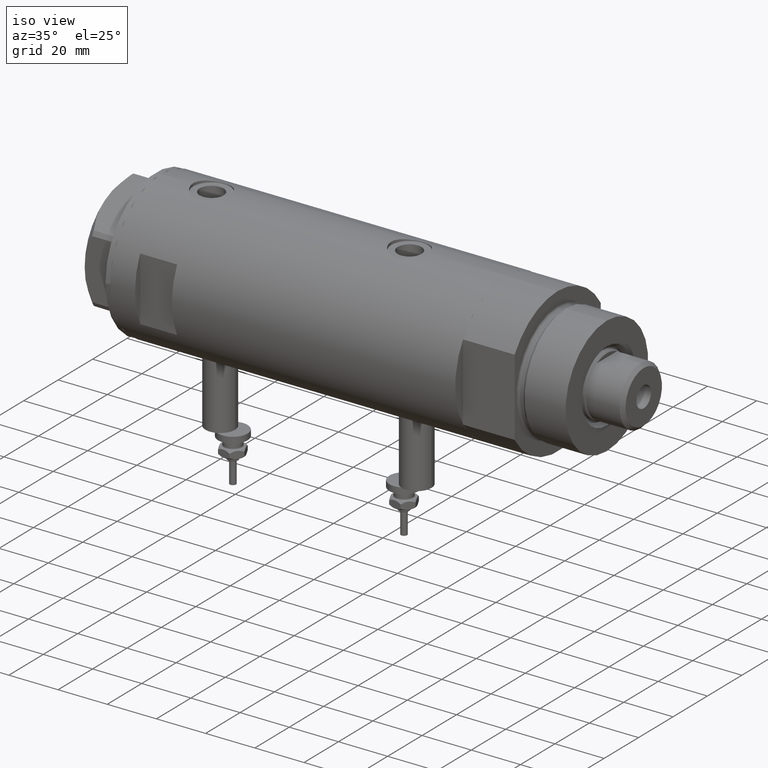
[diagram: clean part render]
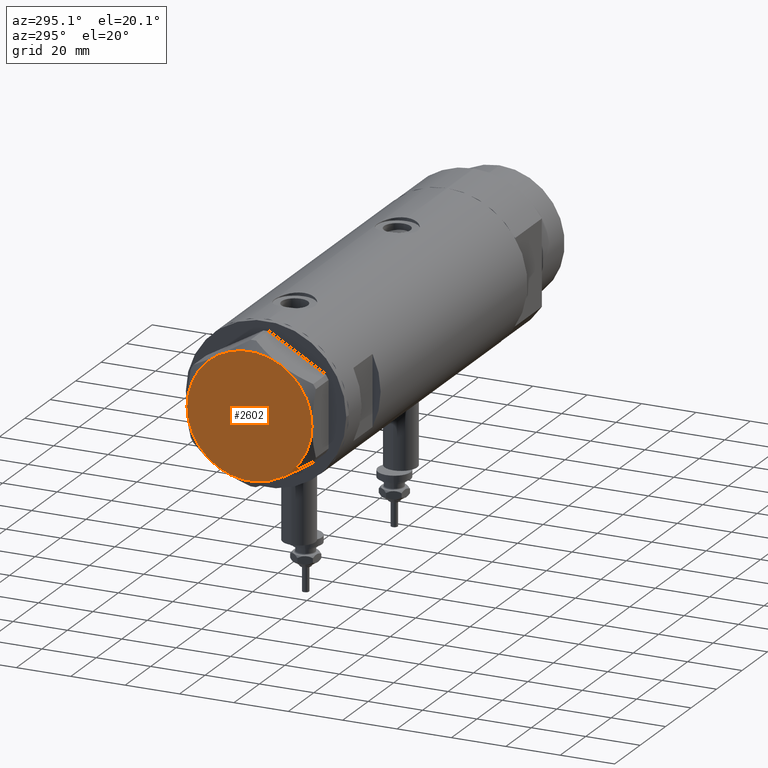
[diagram: tour spotlight — one face highlighted and labeled with its STEP entity id]
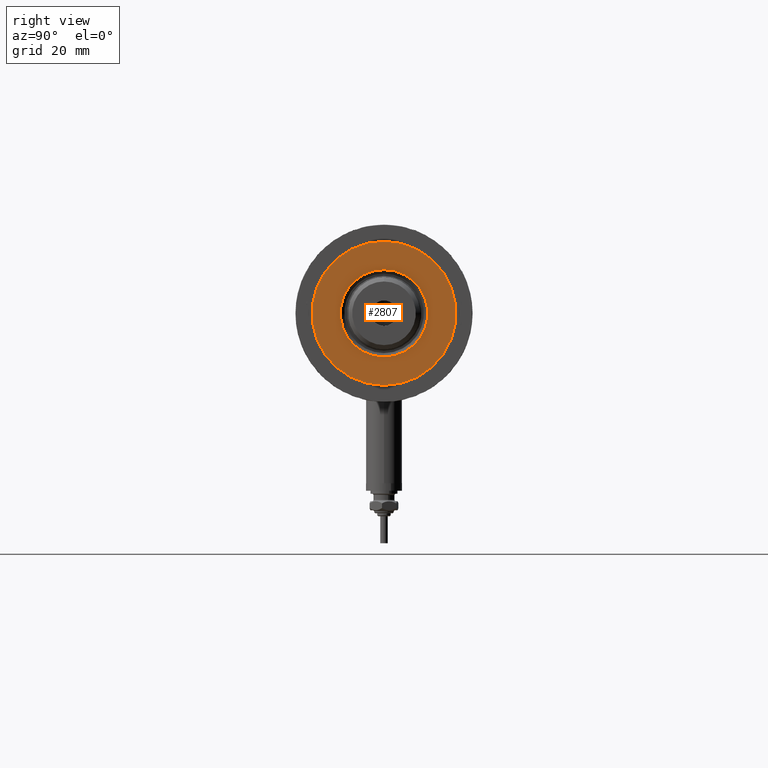
[diagram: tour spotlight — one face highlighted and labeled with its STEP entity id]
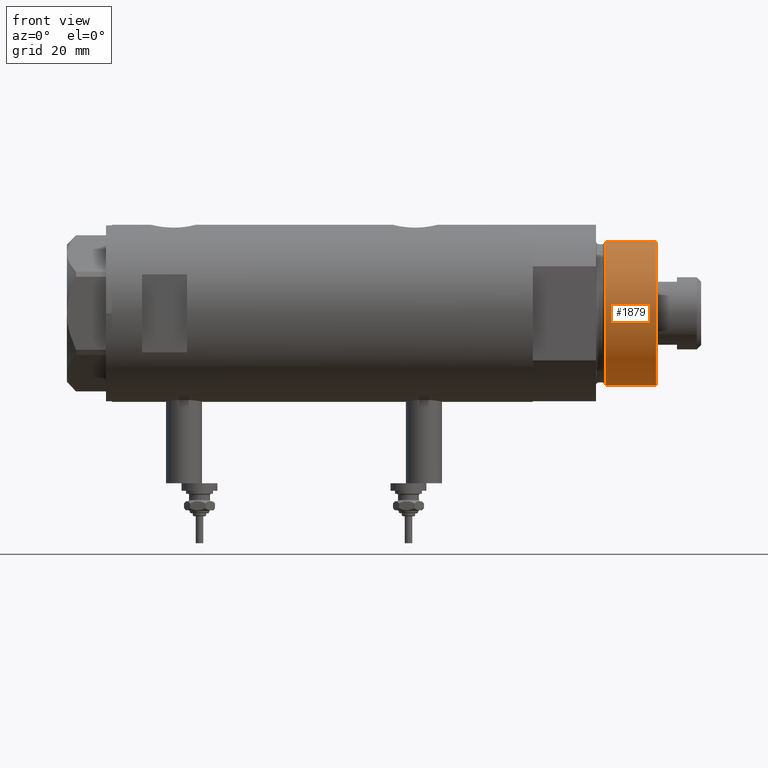
[diagram: tour spotlight — one face highlighted and labeled with its STEP entity id]
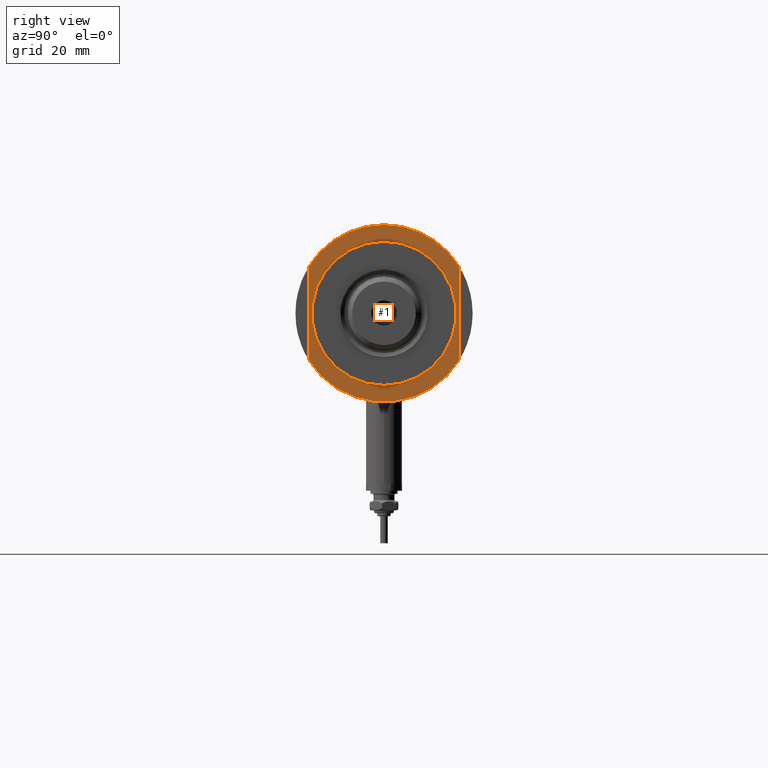
[diagram: tour spotlight — one face highlighted and labeled with its STEP entity id]
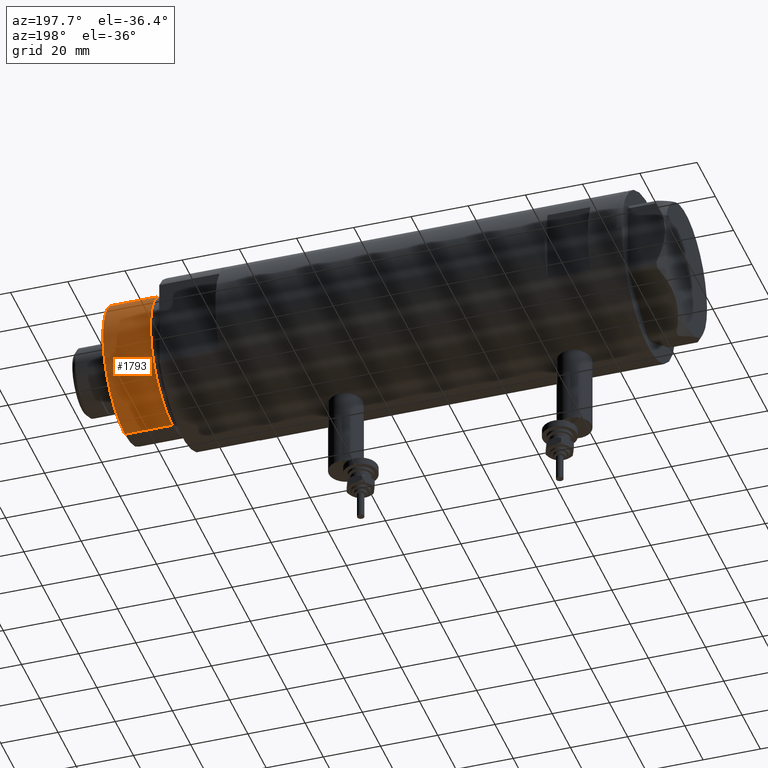
[diagram: tour spotlight — one face highlighted and labeled with its STEP entity id]
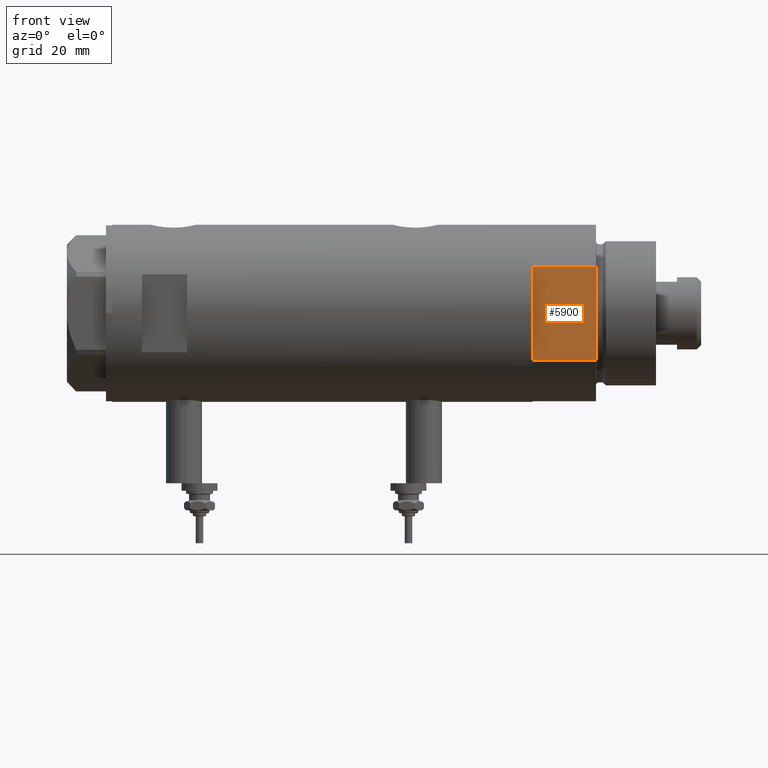
[diagram: tour spotlight — one face highlighted and labeled with its STEP entity id]
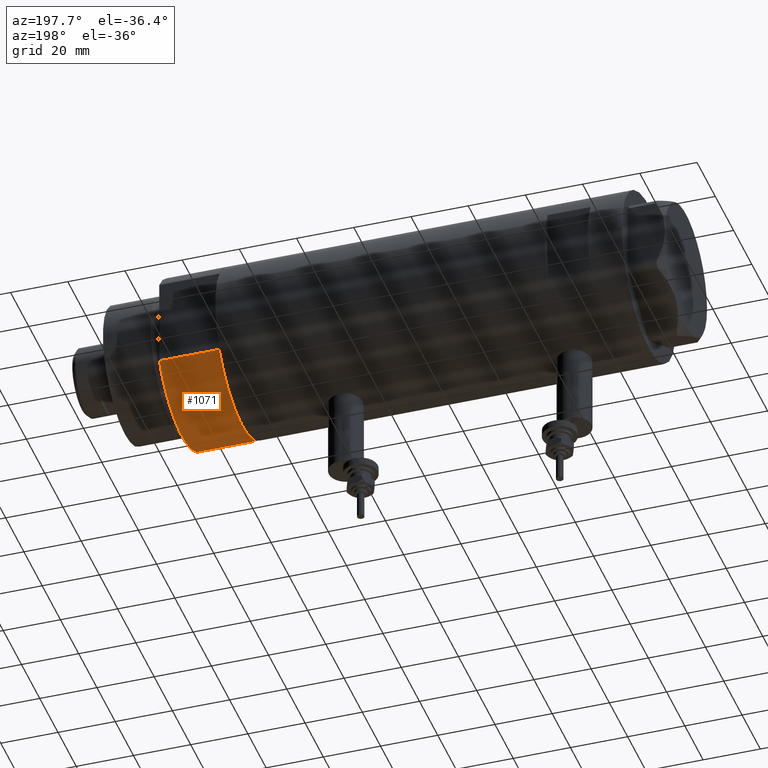
[diagram: tour spotlight — one face highlighted and labeled with its STEP entity id]
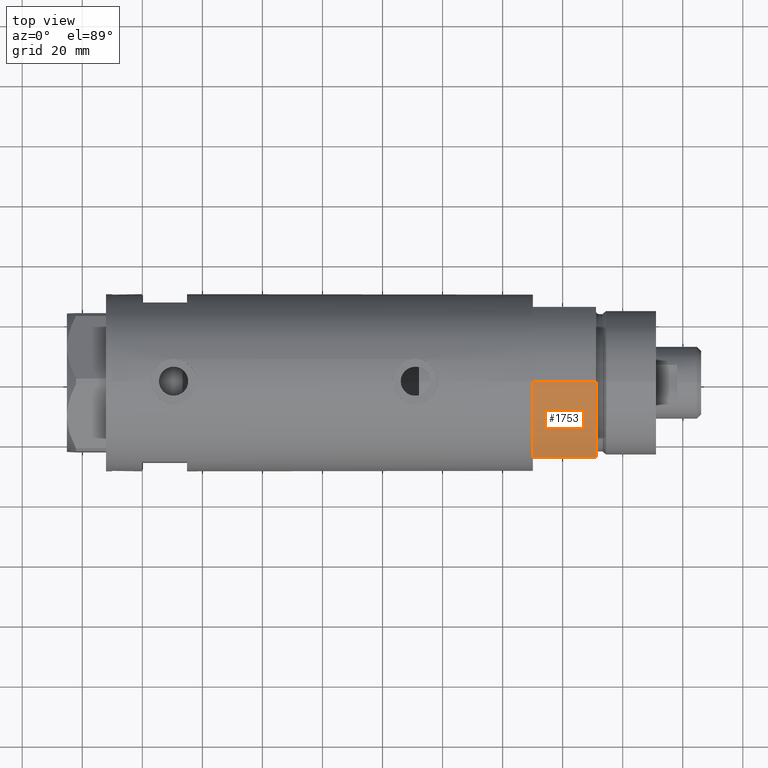
[diagram: tour spotlight — one face highlighted and labeled with its STEP entity id]
A machine part: a face-by-face anatomy tour. The part has 212 B-rep faces; the first image is the clean iso view, then the 8 largest visible faces are spotlighted one at a time (largest first), each with its STEP entity span.

Face 1 — auxiliary view, entity #2602. In plain terms, the highlighted planar face has unit normal (-1, -0, 0).
Definition (entity closure, byte-faithful):
#50 = AXIS2_PLACEMENT_3D ( 'NONE', #1291, #4920, #3073 ) ;
#512 = CARTESIAN_POINT ( 'NONE',  ( 0.000000000000000000, 0.000000000000000000, 13.00000000000000000 ) ) ;
#576 = DIRECTION ( 'NONE',  ( 0.000000000000000000, 0.000000000000000000, 1.000000000000000000 ) ) ;
#672 = CIRCLE ( 'NONE', #4387, 23.00000000000004619 ) ;
#921 = VERTEX_POINT ( 'NONE', #4899 ) ;
#951 = DIRECTION ( 'NONE',  ( 1.000000000000000000, 0.000000000000000000, 0.000000000000000000 ) ) ;
#1046 = CARTESIAN_POINT ( 'NONE',  ( -23.00000000000004619, -8.112498833180673323E-14, 13.00000000000000000 ) ) ;
#1055 = VERTEX_POINT ( 'NONE', #3760 ) ;
#1130 = VERTEX_POINT ( 'NONE', #1046 ) ;
#1141 = CIRCLE ( 'NONE', #50, 23.00000000000004619 ) ;
#1149 = DIRECTION ( 'NONE',  ( 1.000000000000000000, 0.000000000000000000, -0.000000000000000000 ) ) ;
#1291 = CARTESIAN_POINT ( 'NONE',  ( 0.000000000000000000, 0.000000000000000000, 13.00000000000000000 ) ) ;
#1386 = EDGE_CURVE ( 'NONE', #921, #1434, #2549, .T. ) ;
#1434 = VERTEX_POINT ( 'NONE', #2516 ) ;
#1435 = AXIS2_PLACEMENT_3D ( 'NONE', #5136, #4254, #3315 ) ;
#1481 = EDGE_CURVE ( 'NONE', #4657, #3550, #1141, .T. ) ;
#1489 = ORIENTED_EDGE ( 'NONE', *, *, #3864, .T. ) ;
#1561 = CARTESIAN_POINT ( 'NONE',  ( 0.000000000000000000, 0.000000000000000000, 13.00000000000000000 ) ) ;
#1802 = EDGE_CURVE ( 'NONE', #1130, #4657, #2354, .T. ) ;
#1807 = EDGE_LOOP ( 'NONE', ( #3068, #5874, #1489, #5669, #2885, #1838 ) ) ;
#1817 = CIRCLE ( 'NONE', #2190, 23.00000000000004619 ) ;
#1838 = ORIENTED_EDGE ( 'NONE', *, *, #1481, .T. ) ;
#1923 = CARTESIAN_POINT ( 'NONE',  ( 0.000000000000000000, 0.000000000000000000, 13.00000000000000000 ) ) ;
#2190 = AXIS2_PLACEMENT_3D ( 'NONE', #1923, #576, #3704 ) ;
#2231 = DIRECTION ( 'NONE',  ( 1.000000000000000000, 0.000000000000000000, 0.000000000000000000 ) ) ;
#2354 = CIRCLE ( 'NONE', #1435, 23.00000000000004619 ) ;
#2365 = CARTESIAN_POINT ( 'NONE',  ( 0.000000000000000000, 0.000000000000000000, 13.00000000000000000 ) ) ;
#2516 = CARTESIAN_POINT ( 'NONE',  ( 11.49999999999990408, 19.91858428704219364, 13.00000000000000000 ) ) ;
#2529 = DIRECTION ( 'NONE',  ( 0.000000000000000000, 0.000000000000000000, 1.000000000000000000 ) ) ;
#2549 = CIRCLE ( 'NONE', #3904, 23.00000000000004619 ) ;
#2562 = AXIS2_PLACEMENT_3D ( 'NONE', #5276, #2529, #1149 ) ;
#2602 = ADVANCED_FACE ( 'NONE', ( #5299 ), #2967, .T. ) ;
#2885 = ORIENTED_EDGE ( 'NONE', *, *, #1802, .T. ) ;
#2967 = PLANE ( 'NONE',  #2562 ) ;
#3068 = ORIENTED_EDGE ( 'NONE', *, *, #3558, .T. ) ;
#3073 = DIRECTION ( 'NONE',  ( 1.000000000000000000, 0.000000000000000000, 0.000000000000000000 ) ) ;
#3163 = DIRECTION ( 'NONE',  ( 0.000000000000000000, 0.000000000000000000, 1.000000000000000000 ) ) ;
#3223 = CARTESIAN_POINT ( 'NONE',  ( 11.50000000000018296, -19.91858428704203732, 13.00000000000000000 ) ) ;
#3315 = DIRECTION ( 'NONE',  ( 1.000000000000000000, 0.000000000000000000, 0.000000000000000000 ) ) ;
#3550 = VERTEX_POINT ( 'NONE', #3223 ) ;
#3558 = EDGE_CURVE ( 'NONE', #3550, #921, #5733, .T. ) ;
#3704 = DIRECTION ( 'NONE',  ( 1.000000000000000000, 0.000000000000000000, 0.000000000000000000 ) ) ;
#3760 = CARTESIAN_POINT ( 'NONE',  ( -11.50000000000004441, 19.91858428704211548, 13.00000000000000000 ) ) ;
#3864 = EDGE_CURVE ( 'NONE', #1434, #1055, #1817, .T. ) ;
#3904 = AXIS2_PLACEMENT_3D ( 'NONE', #1561, #4344, #5724 ) ;
#4020 = AXIS2_PLACEMENT_3D ( 'NONE', #512, #3163, #2231 ) ;
#4254 = DIRECTION ( 'NONE',  ( 0.000000000000000000, 0.000000000000000000, 1.000000000000000000 ) ) ;
#4344 = DIRECTION ( 'NONE',  ( 0.000000000000000000, 0.000000000000000000, 1.000000000000000000 ) ) ;
#4387 = AXIS2_PLACEMENT_3D ( 'NONE', #2365, #5020, #951 ) ;
#4448 = CARTESIAN_POINT ( 'NONE',  ( -11.49999999999990585, -19.91858428704219364, 13.00000000000000000 ) ) ;
#4657 = VERTEX_POINT ( 'NONE', #4448 ) ;
#4899 = CARTESIAN_POINT ( 'NONE',  ( 22.99999999999995026, 2.373657066004705010E-13, 13.00000000000000000 ) ) ;
#4920 = DIRECTION ( 'NONE',  ( 0.000000000000000000, 0.000000000000000000, 1.000000000000000000 ) ) ;
#5020 = DIRECTION ( 'NONE',  ( 0.000000000000000000, 0.000000000000000000, 1.000000000000000000 ) ) ;
#5022 = EDGE_CURVE ( 'NONE', #1055, #1130, #672, .T. ) ;
#5136 = CARTESIAN_POINT ( 'NONE',  ( 0.000000000000000000, 0.000000000000000000, 13.00000000000000000 ) ) ;
#5276 = CARTESIAN_POINT ( 'NONE',  ( 0.000000000000000000, 0.000000000000000000, 13.00000000000000000 ) ) ;
#5299 = FACE_OUTER_BOUND ( 'NONE', #1807, .T. ) ;
#5669 = ORIENTED_EDGE ( 'NONE', *, *, #5022, .T. ) ;
#5724 = DIRECTION ( 'NONE',  ( 1.000000000000000000, 0.000000000000000000, 0.000000000000000000 ) ) ;
#5733 = CIRCLE ( 'NONE', #4020, 23.00000000000004619 ) ;
#5874 = ORIENTED_EDGE ( 'NONE', *, *, #1386, .T. ) ;

Face 2 — right view, entity #2807. In plain terms, the highlighted planar face has unit normal (1, 0, -0).
Definition (entity closure, byte-faithful):
#293 = DIRECTION ( 'NONE',  ( 1.000000000000000000, 0.000000000000000000, -0.000000000000000000 ) ) ;
#315 = CARTESIAN_POINT ( 'NONE',  ( 0.000000000000000000, 0.000000000000000000, 41.00000000000000000 ) ) ;
#553 = CARTESIAN_POINT ( 'NONE',  ( 0.000000000000000000, 0.000000000000000000, 41.00000000000000000 ) ) ;
#645 = CARTESIAN_POINT ( 'NONE',  ( 0.000000000000000000, 0.000000000000000000, 41.00000000000000000 ) ) ;
#656 = CIRCLE ( 'NONE', #3353, 14.54999999999997939 ) ;
#736 = ORIENTED_EDGE ( 'NONE', *, *, #5848, .T. ) ;
#845 = PLANE ( 'NONE',  #1252 ) ;
#1075 = CIRCLE ( 'NONE', #5916, 14.54999999999997939 ) ;
#1252 = AXIS2_PLACEMENT_3D ( 'NONE', #3587, #2566, #293 ) ;
#1486 = CARTESIAN_POINT ( 'NONE',  ( 0.000000000000000000, 0.000000000000000000, 41.00000000000000000 ) ) ;
#1659 = DIRECTION ( 'NONE',  ( 1.000000000000000000, 0.000000000000000000, 0.000000000000000000 ) ) ;
#1790 = VERTEX_POINT ( 'NONE', #2449 ) ;
#2147 = EDGE_CURVE ( 'NONE', #4327, #1790, #656, .T. ) ;
#2188 = CIRCLE ( 'NONE', #2978, 24.00000000000000355 ) ;
#2323 = CARTESIAN_POINT ( 'NONE',  ( -14.54999999999997939, 1.781861092759396721E-15, 41.00000000000000000 ) ) ;
#2344 = DIRECTION ( 'NONE',  ( 0.000000000000000000, 0.000000000000000000, 1.000000000000000000 ) ) ;
#2449 = CARTESIAN_POINT ( 'NONE',  ( 14.54999999999997939, 0.000000000000000000, 41.00000000000000000 ) ) ;
#2503 = DIRECTION ( 'NONE',  ( 1.000000000000000000, 0.000000000000000000, 0.000000000000000000 ) ) ;
#2566 = DIRECTION ( 'NONE',  ( 0.000000000000000000, 0.000000000000000000, 1.000000000000000000 ) ) ;
#2605 = FACE_OUTER_BOUND ( 'NONE', #3240, .T. ) ;
#2733 = VERTEX_POINT ( 'NONE', #5549 ) ;
#2807 = ADVANCED_FACE ( 'NONE', ( #5854, #2605 ), #845, .T. ) ;
#2823 = DIRECTION ( 'NONE',  ( 0.000000000000000000, 0.000000000000000000, 1.000000000000000000 ) ) ;
#2962 = EDGE_CURVE ( 'NONE', #2733, #5695, #4185, .T. ) ;
#2978 = AXIS2_PLACEMENT_3D ( 'NONE', #1486, #2344, #4148 ) ;
#3011 = CARTESIAN_POINT ( 'NONE',  ( -24.00000000000000355, 0.000000000000000000, 41.00000000000000000 ) ) ;
#3240 = EDGE_LOOP ( 'NONE', ( #736, #5186 ) ) ;
#3353 = AXIS2_PLACEMENT_3D ( 'NONE', #315, #4386, #3957 ) ;
#3582 = ORIENTED_EDGE ( 'NONE', *, *, #2147, .T. ) ;
#3587 = CARTESIAN_POINT ( 'NONE',  ( 0.000000000000000000, 0.000000000000000000, 41.00000000000000000 ) ) ;
#3957 = DIRECTION ( 'NONE',  ( 1.000000000000000000, 0.000000000000000000, 0.000000000000000000 ) ) ;
#4148 = DIRECTION ( 'NONE',  ( 1.000000000000000000, 0.000000000000000000, 0.000000000000000000 ) ) ;
#4185 = CIRCLE ( 'NONE', #5032, 24.00000000000000355 ) ;
#4270 = DIRECTION ( 'NONE',  ( -0.000000000000000000, -0.000000000000000000, -1.000000000000000000 ) ) ;
#4327 = VERTEX_POINT ( 'NONE', #2323 ) ;
#4386 = DIRECTION ( 'NONE',  ( -0.000000000000000000, -0.000000000000000000, -1.000000000000000000 ) ) ;
#4805 = EDGE_CURVE ( 'NONE', #1790, #4327, #1075, .T. ) ;
#5032 = AXIS2_PLACEMENT_3D ( 'NONE', #553, #2823, #2503 ) ;
#5186 = ORIENTED_EDGE ( 'NONE', *, *, #2962, .T. ) ;
#5469 = ORIENTED_EDGE ( 'NONE', *, *, #4805, .T. ) ;
#5490 = EDGE_LOOP ( 'NONE', ( #5469, #3582 ) ) ;
#5549 = CARTESIAN_POINT ( 'NONE',  ( 24.00000000000000355, 2.939152317953648289E-15, 41.00000000000000000 ) ) ;
#5695 = VERTEX_POINT ( 'NONE', #3011 ) ;
#5848 = EDGE_CURVE ( 'NONE', #5695, #2733, #2188, .T. ) ;
#5854 = FACE_BOUND ( 'NONE', #5490, .T. ) ;
#5916 = AXIS2_PLACEMENT_3D ( 'NONE', #645, #4270, #1659 ) ;

Face 3 — front view, entity #1879. In plain terms, the highlighted cylindrical surface (partial cylindrical patch) has radius 24 mm, axis along (-1, -0, 0).
Definition (entity closure, byte-faithful):
#81 = CARTESIAN_POINT ( 'NONE',  ( -24.00000000000000355, 0.000000000000000000, 41.00000000000000000 ) ) ;
#181 = VECTOR ( 'NONE', #5039, 1000.000000000000000 ) ;
#243 = VERTEX_POINT ( 'NONE', #4512 ) ;
#543 = AXIS2_PLACEMENT_3D ( 'NONE', #2662, #4948, #880 ) ;
#544 = EDGE_CURVE ( 'NONE', #243, #1651, #1234, .T. ) ;
#655 = EDGE_CURVE ( 'NONE', #5695, #243, #2331, .T. ) ;
#847 = CYLINDRICAL_SURFACE ( 'NONE', #543, 24.00000000000000355 ) ;
#880 = DIRECTION ( 'NONE',  ( -1.000000000000000000, 0.000000000000000000, 0.000000000000000000 ) ) ;
#957 = ORIENTED_EDGE ( 'NONE', *, *, #655, .T. ) ;
#1197 = ORIENTED_EDGE ( 'NONE', *, *, #544, .T. ) ;
#1234 = CIRCLE ( 'NONE', #1523, 24.00000000000000355 ) ;
#1323 = LINE ( 'NONE', #4131, #181 ) ;
#1486 = CARTESIAN_POINT ( 'NONE',  ( 0.000000000000000000, 0.000000000000000000, 41.00000000000000000 ) ) ;
#1523 = AXIS2_PLACEMENT_3D ( 'NONE', #5477, #3320, #1839 ) ;
#1651 = VERTEX_POINT ( 'NONE', #2680 ) ;
#1839 = DIRECTION ( 'NONE',  ( 1.000000000000000000, 0.000000000000000000, 0.000000000000000000 ) ) ;
#1879 = ADVANCED_FACE ( 'NONE', ( #4559 ), #847, .T. ) ;
#2188 = CIRCLE ( 'NONE', #2978, 24.00000000000000355 ) ;
#2331 = LINE ( 'NONE', #81, #2345 ) ;
#2344 = DIRECTION ( 'NONE',  ( 0.000000000000000000, 0.000000000000000000, 1.000000000000000000 ) ) ;
#2345 = VECTOR ( 'NONE', #4224, 1000.000000000000000 ) ;
#2662 = CARTESIAN_POINT ( 'NONE',  ( 0.000000000000000000, 0.000000000000000000, 41.00000000000000000 ) ) ;
#2680 = CARTESIAN_POINT ( 'NONE',  ( 24.00000000000000355, 2.939152317953648289E-15, 24.37384048104054557 ) ) ;
#2733 = VERTEX_POINT ( 'NONE', #5549 ) ;
#2978 = AXIS2_PLACEMENT_3D ( 'NONE', #1486, #2344, #4148 ) ;
#3011 = CARTESIAN_POINT ( 'NONE',  ( -24.00000000000000355, 0.000000000000000000, 41.00000000000000000 ) ) ;
#3320 = DIRECTION ( 'NONE',  ( -0.000000000000000000, -0.000000000000000000, 1.000000000000000000 ) ) ;
#3987 = EDGE_CURVE ( 'NONE', #2733, #1651, #1323, .T. ) ;
#4063 = EDGE_LOOP ( 'NONE', ( #5497, #5235, #957, #1197 ) ) ;
#4131 = CARTESIAN_POINT ( 'NONE',  ( 24.00000000000000355, 2.939152317953648289E-15, 41.00000000000000000 ) ) ;
#4148 = DIRECTION ( 'NONE',  ( 1.000000000000000000, 0.000000000000000000, 0.000000000000000000 ) ) ;
#4224 = DIRECTION ( 'NONE',  ( -0.000000000000000000, -0.000000000000000000, -1.000000000000000000 ) ) ;
#4512 = CARTESIAN_POINT ( 'NONE',  ( -24.00000000000000355, 0.000000000000000000, 24.37384048104054557 ) ) ;
#4559 = FACE_OUTER_BOUND ( 'NONE', #4063, .T. ) ;
#4948 = DIRECTION ( 'NONE',  ( -0.000000000000000000, -0.000000000000000000, -1.000000000000000000 ) ) ;
#5039 = DIRECTION ( 'NONE',  ( -0.000000000000000000, -0.000000000000000000, -1.000000000000000000 ) ) ;
#5235 = ORIENTED_EDGE ( 'NONE', *, *, #5848, .F. ) ;
#5477 = CARTESIAN_POINT ( 'NONE',  ( 0.000000000000000000, 0.000000000000000000, 24.37384048104054557 ) ) ;
#5497 = ORIENTED_EDGE ( 'NONE', *, *, #3987, .F. ) ;
#5549 = CARTESIAN_POINT ( 'NONE',  ( 24.00000000000000355, 2.939152317953648289E-15, 41.00000000000000000 ) ) ;
#5695 = VERTEX_POINT ( 'NONE', #3011 ) ;
#5848 = EDGE_CURVE ( 'NONE', #5695, #2733, #2188, .T. ) ;

Face 4 — right view, entity #1. In plain terms, the highlighted planar face has unit normal (1, 0, -0).
Definition (entity closure, byte-faithful):
#1 = ADVANCED_FACE ( 'NONE', ( #3008, #746 ), #1310, .T. ) ;
#46 = VERTEX_POINT ( 'NONE', #3402 ) ;
#246 = CIRCLE ( 'NONE', #1031, 24.00000000000000000 ) ;
#279 = CARTESIAN_POINT ( 'NONE',  ( 0.000000000000000000, 0.000000000000000000, 21.00000000000000000 ) ) ;
#321 = VERTEX_POINT ( 'NONE', #2563 ) ;
#621 = ORIENTED_EDGE ( 'NONE', *, *, #4200, .T. ) ;
#713 = DIRECTION ( 'NONE',  ( 1.000000000000000000, 0.000000000000000000, 0.000000000000000000 ) ) ;
#746 = FACE_OUTER_BOUND ( 'NONE', #3217, .T. ) ;
#911 = CARTESIAN_POINT ( 'NONE',  ( -15.66045976336583401, 25.00000000000000000, 21.00000000000000000 ) ) ;
#959 = CIRCLE ( 'NONE', #5346, 29.50000000000000355 ) ;
#964 = EDGE_CURVE ( 'NONE', #46, #2304, #246, .T. ) ;
#1031 = AXIS2_PLACEMENT_3D ( 'NONE', #5914, #5471, #1430 ) ;
#1058 = EDGE_CURVE ( 'NONE', #321, #1213, #5095, .T. ) ;
#1067 = VERTEX_POINT ( 'NONE', #2783 ) ;
#1161 = CIRCLE ( 'NONE', #3468, 29.50000000000000355 ) ;
#1213 = VERTEX_POINT ( 'NONE', #3237 ) ;
#1222 = ORIENTED_EDGE ( 'NONE', *, *, #4575, .T. ) ;
#1263 = CARTESIAN_POINT ( 'NONE',  ( -15.66045976336583401, -25.00000000000000000, 21.00000000000000000 ) ) ;
#1272 = EDGE_CURVE ( 'NONE', #4910, #1067, #1728, .T. ) ;
#1305 = CARTESIAN_POINT ( 'NONE',  ( 0.000000000000000000, 0.000000000000000000, 21.00000000000000000 ) ) ;
#1310 = PLANE ( 'NONE',  #3388 ) ;
#1430 = DIRECTION ( 'NONE',  ( 1.000000000000000000, 0.000000000000000000, 0.000000000000000000 ) ) ;
#1613 = ORIENTED_EDGE ( 'NONE', *, *, #964, .T. ) ;
#1644 = AXIS2_PLACEMENT_3D ( 'NONE', #1305, #3606, #4443 ) ;
#1728 = LINE ( 'NONE', #1263, #3713 ) ;
#2194 = DIRECTION ( 'NONE',  ( 0.000000000000000000, 0.000000000000000000, 1.000000000000000000 ) ) ;
#2304 = VERTEX_POINT ( 'NONE', #3020 ) ;
#2563 = CARTESIAN_POINT ( 'NONE',  ( -15.66045976336583045, 24.99999999999999645, 21.00000000000000355 ) ) ;
#2746 = DIRECTION ( 'NONE',  ( 1.000000000000000000, 0.000000000000000000, 0.000000000000000000 ) ) ;
#2783 = CARTESIAN_POINT ( 'NONE',  ( -15.66045976336583045, -24.99999999999999645, 20.99999999999999645 ) ) ;
#2860 = ORIENTED_EDGE ( 'NONE', *, *, #1272, .F. ) ;
#2863 = CARTESIAN_POINT ( 'NONE',  ( 0.000000000000000000, 0.000000000000000000, 21.00000000000000000 ) ) ;
#2922 = DIRECTION ( 'NONE',  ( -0.000000000000000000, -0.000000000000000000, -1.000000000000000000 ) ) ;
#2930 = DIRECTION ( 'NONE',  ( 1.000000000000000000, 0.000000000000000000, 0.000000000000000000 ) ) ;
#3008 = FACE_BOUND ( 'NONE', #4903, .T. ) ;
#3020 = CARTESIAN_POINT ( 'NONE',  ( 24.00000000000000000, 0.000000000000000000, 21.00000000000000000 ) ) ;
#3031 = DIRECTION ( 'NONE',  ( 0.000000000000000000, 0.000000000000000000, 1.000000000000000000 ) ) ;
#3100 = EDGE_CURVE ( 'NONE', #4910, #1213, #1161, .T. ) ;
#3106 = CARTESIAN_POINT ( 'NONE',  ( -29.50000000000000355, 0.000000000000000000, 21.00000000000000000 ) ) ;
#3217 = EDGE_LOOP ( 'NONE', ( #2860, #4985, #5125, #1222, #5314 ) ) ;
#3236 = DIRECTION ( 'NONE',  ( 1.000000000000000000, 0.000000000000000000, 0.000000000000000000 ) ) ;
#3237 = CARTESIAN_POINT ( 'NONE',  ( 15.66045976336583045, 24.99999999999999645, 20.99999999999999645 ) ) ;
#3371 = CIRCLE ( 'NONE', #3844, 24.00000000000000000 ) ;
#3388 = AXIS2_PLACEMENT_3D ( 'NONE', #4798, #3031, #5340 ) ;
#3402 = CARTESIAN_POINT ( 'NONE',  ( -24.00000000000000000, 2.939152317953647894E-15, 21.00000000000000000 ) ) ;
#3468 = AXIS2_PLACEMENT_3D ( 'NONE', #2863, #4672, #2930 ) ;
#3606 = DIRECTION ( 'NONE',  ( 0.000000000000000000, 0.000000000000000000, 1.000000000000000000 ) ) ;
#3713 = VECTOR ( 'NONE', #4924, 1000.000000000000000 ) ;
#3844 = AXIS2_PLACEMENT_3D ( 'NONE', #5642, #2922, #713 ) ;
#4096 = CIRCLE ( 'NONE', #1644, 29.50000000000000355 ) ;
#4172 = VECTOR ( 'NONE', #2746, 1000.000000000000000 ) ;
#4200 = EDGE_CURVE ( 'NONE', #2304, #46, #3371, .T. ) ;
#4443 = DIRECTION ( 'NONE',  ( 1.000000000000000000, 0.000000000000000000, 0.000000000000000000 ) ) ;
#4575 = EDGE_CURVE ( 'NONE', #321, #4674, #959, .T. ) ;
#4672 = DIRECTION ( 'NONE',  ( 0.000000000000000000, 0.000000000000000000, 1.000000000000000000 ) ) ;
#4674 = VERTEX_POINT ( 'NONE', #3106 ) ;
#4798 = CARTESIAN_POINT ( 'NONE',  ( 0.000000000000000000, 0.000000000000000000, 21.00000000000000000 ) ) ;
#4903 = EDGE_LOOP ( 'NONE', ( #621, #1613 ) ) ;
#4910 = VERTEX_POINT ( 'NONE', #4933 ) ;
#4924 = DIRECTION ( 'NONE',  ( -1.000000000000000000, -0.000000000000000000, -0.000000000000000000 ) ) ;
#4933 = CARTESIAN_POINT ( 'NONE',  ( 15.66045976336583045, -25.00000000000000000, 21.00000000000000355 ) ) ;
#4956 = EDGE_CURVE ( 'NONE', #4674, #1067, #4096, .T. ) ;
#4985 = ORIENTED_EDGE ( 'NONE', *, *, #3100, .T. ) ;
#5095 = LINE ( 'NONE', #911, #4172 ) ;
#5125 = ORIENTED_EDGE ( 'NONE', *, *, #1058, .F. ) ;
#5314 = ORIENTED_EDGE ( 'NONE', *, *, #4956, .T. ) ;
#5340 = DIRECTION ( 'NONE',  ( 1.000000000000000000, 0.000000000000000000, -0.000000000000000000 ) ) ;
#5346 = AXIS2_PLACEMENT_3D ( 'NONE', #279, #2194, #3236 ) ;
#5471 = DIRECTION ( 'NONE',  ( -0.000000000000000000, -0.000000000000000000, -1.000000000000000000 ) ) ;
#5642 = CARTESIAN_POINT ( 'NONE',  ( 0.000000000000000000, 0.000000000000000000, 21.00000000000000000 ) ) ;
#5914 = CARTESIAN_POINT ( 'NONE',  ( 0.000000000000000000, 0.000000000000000000, 21.00000000000000000 ) ) ;

Face 5 — auxiliary view, entity #1793. In plain terms, the highlighted cylindrical surface (partial cylindrical patch) has radius 24 mm, axis along (-1, -0, 0).
Definition (entity closure, byte-faithful):
#81 = CARTESIAN_POINT ( 'NONE',  ( -24.00000000000000355, 0.000000000000000000, 41.00000000000000000 ) ) ;
#181 = VECTOR ( 'NONE', #5039, 1000.000000000000000 ) ;
#243 = VERTEX_POINT ( 'NONE', #4512 ) ;
#256 = AXIS2_PLACEMENT_3D ( 'NONE', #3818, #1521, #1495 ) ;
#503 = CARTESIAN_POINT ( 'NONE',  ( 0.000000000000000000, 0.000000000000000000, 24.37384048104054557 ) ) ;
#553 = CARTESIAN_POINT ( 'NONE',  ( 0.000000000000000000, 0.000000000000000000, 41.00000000000000000 ) ) ;
#655 = EDGE_CURVE ( 'NONE', #5695, #243, #2331, .T. ) ;
#780 = ORIENTED_EDGE ( 'NONE', *, *, #2962, .F. ) ;
#1030 = CYLINDRICAL_SURFACE ( 'NONE', #256, 24.00000000000000355 ) ;
#1323 = LINE ( 'NONE', #4131, #181 ) ;
#1403 = EDGE_LOOP ( 'NONE', ( #780, #3418, #5002, #3754 ) ) ;
#1495 = DIRECTION ( 'NONE',  ( -1.000000000000000000, 0.000000000000000000, 0.000000000000000000 ) ) ;
#1521 = DIRECTION ( 'NONE',  ( -0.000000000000000000, -0.000000000000000000, -1.000000000000000000 ) ) ;
#1651 = VERTEX_POINT ( 'NONE', #2680 ) ;
#1793 = ADVANCED_FACE ( 'NONE', ( #4108 ), #1030, .T. ) ;
#1905 = DIRECTION ( 'NONE',  ( -0.000000000000000000, -0.000000000000000000, 1.000000000000000000 ) ) ;
#2315 = DIRECTION ( 'NONE',  ( 1.000000000000000000, 0.000000000000000000, 0.000000000000000000 ) ) ;
#2331 = LINE ( 'NONE', #81, #2345 ) ;
#2345 = VECTOR ( 'NONE', #4224, 1000.000000000000000 ) ;
#2503 = DIRECTION ( 'NONE',  ( 1.000000000000000000, 0.000000000000000000, 0.000000000000000000 ) ) ;
#2547 = EDGE_CURVE ( 'NONE', #1651, #243, #4754, .T. ) ;
#2680 = CARTESIAN_POINT ( 'NONE',  ( 24.00000000000000355, 2.939152317953648289E-15, 24.37384048104054557 ) ) ;
#2733 = VERTEX_POINT ( 'NONE', #5549 ) ;
#2823 = DIRECTION ( 'NONE',  ( 0.000000000000000000, 0.000000000000000000, 1.000000000000000000 ) ) ;
#2962 = EDGE_CURVE ( 'NONE', #2733, #5695, #4185, .T. ) ;
#3011 = CARTESIAN_POINT ( 'NONE',  ( -24.00000000000000355, 0.000000000000000000, 41.00000000000000000 ) ) ;
#3418 = ORIENTED_EDGE ( 'NONE', *, *, #3987, .T. ) ;
#3754 = ORIENTED_EDGE ( 'NONE', *, *, #655, .F. ) ;
#3818 = CARTESIAN_POINT ( 'NONE',  ( 0.000000000000000000, 0.000000000000000000, 41.00000000000000000 ) ) ;
#3987 = EDGE_CURVE ( 'NONE', #2733, #1651, #1323, .T. ) ;
#4108 = FACE_OUTER_BOUND ( 'NONE', #1403, .T. ) ;
#4131 = CARTESIAN_POINT ( 'NONE',  ( 24.00000000000000355, 2.939152317953648289E-15, 41.00000000000000000 ) ) ;
#4185 = CIRCLE ( 'NONE', #5032, 24.00000000000000355 ) ;
#4224 = DIRECTION ( 'NONE',  ( -0.000000000000000000, -0.000000000000000000, -1.000000000000000000 ) ) ;
#4512 = CARTESIAN_POINT ( 'NONE',  ( -24.00000000000000355, 0.000000000000000000, 24.37384048104054557 ) ) ;
#4754 = CIRCLE ( 'NONE', #5134, 24.00000000000000355 ) ;
#5002 = ORIENTED_EDGE ( 'NONE', *, *, #2547, .T. ) ;
#5032 = AXIS2_PLACEMENT_3D ( 'NONE', #553, #2823, #2503 ) ;
#5039 = DIRECTION ( 'NONE',  ( -0.000000000000000000, -0.000000000000000000, -1.000000000000000000 ) ) ;
#5134 = AXIS2_PLACEMENT_3D ( 'NONE', #503, #1905, #2315 ) ;
#5549 = CARTESIAN_POINT ( 'NONE',  ( 24.00000000000000355, 2.939152317953648289E-15, 41.00000000000000000 ) ) ;
#5695 = VERTEX_POINT ( 'NONE', #3011 ) ;

Face 6 — front view, entity #5900. In plain terms, the highlighted planar face has unit normal (-0, 1, 0).
Definition (entity closure, byte-faithful):
#15 = ORIENTED_EDGE ( 'NONE', *, *, #4648, .T. ) ;
#319 = CARTESIAN_POINT ( 'NONE',  ( -15.66045976336583401, -25.00000000000000000, 0.000000000000000000 ) ) ;
#335 = VERTEX_POINT ( 'NONE', #2534 ) ;
#433 = VERTEX_POINT ( 'NONE', #3425 ) ;
#437 = LINE ( 'NONE', #3061, #4577 ) ;
#483 = CARTESIAN_POINT ( 'NONE',  ( -15.66045976336583401, -25.00000000000000000, 0.000000000000000000 ) ) ;
#628 = DIRECTION ( 'NONE',  ( -1.000000000000000000, -0.000000000000000000, -0.000000000000000000 ) ) ;
#989 = EDGE_CURVE ( 'NONE', #335, #5699, #3674, .T. ) ;
#1000 = FACE_OUTER_BOUND ( 'NONE', #3211, .T. ) ;
#1067 = VERTEX_POINT ( 'NONE', #2783 ) ;
#1111 = ORIENTED_EDGE ( 'NONE', *, *, #5554, .F. ) ;
#1263 = CARTESIAN_POINT ( 'NONE',  ( -15.66045976336583401, -25.00000000000000000, 21.00000000000000000 ) ) ;
#1272 = EDGE_CURVE ( 'NONE', #4910, #1067, #1728, .T. ) ;
#1286 = DIRECTION ( 'NONE',  ( -1.000000000000000000, -0.000000000000000000, -0.000000000000000000 ) ) ;
#1728 = LINE ( 'NONE', #1263, #3713 ) ;
#1798 = LINE ( 'NONE', #5579, #5911 ) ;
#2003 = VECTOR ( 'NONE', #628, 1000.000000000000000 ) ;
#2415 = PLANE ( 'NONE',  #2676 ) ;
#2422 = LINE ( 'NONE', #4711, #2003 ) ;
#2532 = ORIENTED_EDGE ( 'NONE', *, *, #989, .F. ) ;
#2534 = CARTESIAN_POINT ( 'NONE',  ( 7.141428428542853091, -25.00000000000000000, 0.000000000000000000 ) ) ;
#2545 = VECTOR ( 'NONE', #3646, 1000.000000000000000 ) ;
#2600 = DIRECTION ( 'NONE',  ( -0.000000000000000000, -0.000000000000000000, 1.000000000000000000 ) ) ;
#2676 = AXIS2_PLACEMENT_3D ( 'NONE', #3752, #5556, #4704 ) ;
#2783 = CARTESIAN_POINT ( 'NONE',  ( -15.66045976336583045, -24.99999999999999645, 20.99999999999999645 ) ) ;
#3061 = CARTESIAN_POINT ( 'NONE',  ( 15.66045976336583401, -25.00000000000000000, 0.000000000000000000 ) ) ;
#3211 = EDGE_LOOP ( 'NONE', ( #4601, #5268, #1111, #2532, #5062, #15 ) ) ;
#3425 = CARTESIAN_POINT ( 'NONE',  ( -15.66045976336582690, -25.00000000000000000, 0.000000000000000000 ) ) ;
#3646 = DIRECTION ( 'NONE',  ( -1.000000000000000000, -0.000000000000000000, -0.000000000000000000 ) ) ;
#3674 = LINE ( 'NONE', #483, #2545 ) ;
#3713 = VECTOR ( 'NONE', #4924, 1000.000000000000000 ) ;
#3752 = CARTESIAN_POINT ( 'NONE',  ( -15.66045976336583401, -25.00000000000000000, 0.000000000000000000 ) ) ;
#4248 = VERTEX_POINT ( 'NONE', #4723 ) ;
#4424 = LINE ( 'NONE', #319, #5820 ) ;
#4577 = VECTOR ( 'NONE', #2600, 1000.000000000000000 ) ;
#4601 = ORIENTED_EDGE ( 'NONE', *, *, #1272, .T. ) ;
#4648 = EDGE_CURVE ( 'NONE', #4248, #4910, #437, .T. ) ;
#4656 = EDGE_CURVE ( 'NONE', #4248, #335, #4424, .T. ) ;
#4704 = DIRECTION ( 'NONE',  ( 0.000000000000000000, -0.000000000000000000, 1.000000000000000000 ) ) ;
#4711 = CARTESIAN_POINT ( 'NONE',  ( -15.66045976336583401, -25.00000000000000000, 0.000000000000000000 ) ) ;
#4723 = CARTESIAN_POINT ( 'NONE',  ( 15.66045976336583401, -25.00000000000000000, 0.000000000000000000 ) ) ;
#4910 = VERTEX_POINT ( 'NONE', #4933 ) ;
#4924 = DIRECTION ( 'NONE',  ( -1.000000000000000000, -0.000000000000000000, -0.000000000000000000 ) ) ;
#4933 = CARTESIAN_POINT ( 'NONE',  ( 15.66045976336583045, -25.00000000000000000, 21.00000000000000355 ) ) ;
#5062 = ORIENTED_EDGE ( 'NONE', *, *, #4656, .F. ) ;
#5122 = DIRECTION ( 'NONE',  ( -0.000000000000000000, -0.000000000000000000, 1.000000000000000000 ) ) ;
#5268 = ORIENTED_EDGE ( 'NONE', *, *, #5843, .F. ) ;
#5281 = CARTESIAN_POINT ( 'NONE',  ( -7.141428428542853091, -25.00000000000000000, 0.000000000000000000 ) ) ;
#5554 = EDGE_CURVE ( 'NONE', #5699, #433, #2422, .T. ) ;
#5556 = DIRECTION ( 'NONE',  ( -0.000000000000000000, 1.000000000000000000, 0.000000000000000000 ) ) ;
#5579 = CARTESIAN_POINT ( 'NONE',  ( -15.66045976336583401, -25.00000000000000000, 0.000000000000000000 ) ) ;
#5699 = VERTEX_POINT ( 'NONE', #5281 ) ;
#5820 = VECTOR ( 'NONE', #1286, 1000.000000000000000 ) ;
#5843 = EDGE_CURVE ( 'NONE', #433, #1067, #1798, .T. ) ;
#5900 = ADVANCED_FACE ( 'NONE', ( #1000 ), #2415, .F. ) ;
#5911 = VECTOR ( 'NONE', #5122, 1000.000000000000000 ) ;

Face 7 — auxiliary view, entity #1071. In plain terms, the highlighted cylindrical surface (partial cylindrical patch) has radius 29.5 mm, axis along (-1, -0, 0).
Definition (entity closure, byte-faithful):
#29 = EDGE_LOOP ( 'NONE', ( #4769, #934, #1350, #5029 ) ) ;
#395 = EDGE_CURVE ( 'NONE', #4248, #5324, #5491, .T. ) ;
#437 = LINE ( 'NONE', #3061, #4577 ) ;
#934 = ORIENTED_EDGE ( 'NONE', *, *, #4648, .F. ) ;
#1016 = DIRECTION ( 'NONE',  ( 1.000000000000000000, 0.000000000000000000, 0.000000000000000000 ) ) ;
#1071 = ADVANCED_FACE ( 'NONE', ( #4129 ), #2718, .T. ) ;
#1129 = DIRECTION ( 'NONE',  ( -0.000000000000000000, -0.000000000000000000, 1.000000000000000000 ) ) ;
#1144 = VECTOR ( 'NONE', #1129, 1000.000000000000000 ) ;
#1161 = CIRCLE ( 'NONE', #3468, 29.50000000000000355 ) ;
#1213 = VERTEX_POINT ( 'NONE', #3237 ) ;
#1350 = ORIENTED_EDGE ( 'NONE', *, *, #395, .T. ) ;
#1762 = EDGE_CURVE ( 'NONE', #5324, #1213, #3789, .T. ) ;
#1967 = DIRECTION ( 'NONE',  ( -0.000000000000000000, -0.000000000000000000, -1.000000000000000000 ) ) ;
#1999 = DIRECTION ( 'NONE',  ( -1.000000000000000000, 0.000000000000000000, 0.000000000000000000 ) ) ;
#2335 = CARTESIAN_POINT ( 'NONE',  ( 15.66045976336582690, 25.00000000000000000, 0.000000000000000000 ) ) ;
#2446 = AXIS2_PLACEMENT_3D ( 'NONE', #2891, #4198, #1016 ) ;
#2600 = DIRECTION ( 'NONE',  ( -0.000000000000000000, -0.000000000000000000, 1.000000000000000000 ) ) ;
#2718 = CYLINDRICAL_SURFACE ( 'NONE', #3451, 29.50000000000000355 ) ;
#2863 = CARTESIAN_POINT ( 'NONE',  ( 0.000000000000000000, 0.000000000000000000, 21.00000000000000000 ) ) ;
#2891 = CARTESIAN_POINT ( 'NONE',  ( 0.000000000000000000, 0.000000000000000000, 0.000000000000000000 ) ) ;
#2930 = DIRECTION ( 'NONE',  ( 1.000000000000000000, 0.000000000000000000, 0.000000000000000000 ) ) ;
#3061 = CARTESIAN_POINT ( 'NONE',  ( 15.66045976336583401, -25.00000000000000000, 0.000000000000000000 ) ) ;
#3100 = EDGE_CURVE ( 'NONE', #4910, #1213, #1161, .T. ) ;
#3237 = CARTESIAN_POINT ( 'NONE',  ( 15.66045976336583045, 24.99999999999999645, 20.99999999999999645 ) ) ;
#3451 = AXIS2_PLACEMENT_3D ( 'NONE', #4596, #1967, #1999 ) ;
#3468 = AXIS2_PLACEMENT_3D ( 'NONE', #2863, #4672, #2930 ) ;
#3789 = LINE ( 'NONE', #3878, #1144 ) ;
#3878 = CARTESIAN_POINT ( 'NONE',  ( 15.66045976336583401, 25.00000000000000000, 0.000000000000000000 ) ) ;
#4129 = FACE_OUTER_BOUND ( 'NONE', #29, .T. ) ;
#4198 = DIRECTION ( 'NONE',  ( 0.000000000000000000, 0.000000000000000000, 1.000000000000000000 ) ) ;
#4248 = VERTEX_POINT ( 'NONE', #4723 ) ;
#4577 = VECTOR ( 'NONE', #2600, 1000.000000000000000 ) ;
#4596 = CARTESIAN_POINT ( 'NONE',  ( 0.000000000000000000, 0.000000000000000000, 21.00000000000000000 ) ) ;
#4648 = EDGE_CURVE ( 'NONE', #4248, #4910, #437, .T. ) ;
#4672 = DIRECTION ( 'NONE',  ( 0.000000000000000000, 0.000000000000000000, 1.000000000000000000 ) ) ;
#4723 = CARTESIAN_POINT ( 'NONE',  ( 15.66045976336583401, -25.00000000000000000, 0.000000000000000000 ) ) ;
#4769 = ORIENTED_EDGE ( 'NONE', *, *, #3100, .F. ) ;
#4910 = VERTEX_POINT ( 'NONE', #4933 ) ;
#4933 = CARTESIAN_POINT ( 'NONE',  ( 15.66045976336583045, -25.00000000000000000, 21.00000000000000355 ) ) ;
#5029 = ORIENTED_EDGE ( 'NONE', *, *, #1762, .T. ) ;
#5324 = VERTEX_POINT ( 'NONE', #2335 ) ;
#5491 = CIRCLE ( 'NONE', #2446, 29.50000000000000355 ) ;

Face 8 — top view, entity #1753. In plain terms, the highlighted cylindrical surface (partial cylindrical patch) has radius 29.5 mm, axis along (-1, -0, 0).
Definition (entity closure, byte-faithful):
#433 = VERTEX_POINT ( 'NONE', #3425 ) ;
#660 = DIRECTION ( 'NONE',  ( -0.000000000000000000, -0.000000000000000000, -1.000000000000000000 ) ) ;
#1028 = EDGE_CURVE ( 'NONE', #4674, #5262, #2804, .T. ) ;
#1067 = VERTEX_POINT ( 'NONE', #2783 ) ;
#1305 = CARTESIAN_POINT ( 'NONE',  ( 0.000000000000000000, 0.000000000000000000, 21.00000000000000000 ) ) ;
#1644 = AXIS2_PLACEMENT_3D ( 'NONE', #1305, #3606, #4443 ) ;
#1753 = ADVANCED_FACE ( 'NONE', ( #5098 ), #3385, .T. ) ;
#1798 = LINE ( 'NONE', #5579, #5911 ) ;
#2153 = ORIENTED_EDGE ( 'NONE', *, *, #5843, .T. ) ;
#2172 = ORIENTED_EDGE ( 'NONE', *, *, #4956, .F. ) ;
#2353 = DIRECTION ( 'NONE',  ( -0.000000000000000000, -0.000000000000000000, -1.000000000000000000 ) ) ;
#2479 = DIRECTION ( 'NONE',  ( -1.000000000000000000, 0.000000000000000000, 0.000000000000000000 ) ) ;
#2580 = CARTESIAN_POINT ( 'NONE',  ( -29.50000000000000355, 0.000000000000000000, 0.000000000000000000 ) ) ;
#2783 = CARTESIAN_POINT ( 'NONE',  ( -15.66045976336583045, -24.99999999999999645, 20.99999999999999645 ) ) ;
#2804 = LINE ( 'NONE', #3222, #3630 ) ;
#2919 = ORIENTED_EDGE ( 'NONE', *, *, #1028, .T. ) ;
#3085 = ORIENTED_EDGE ( 'NONE', *, *, #4356, .T. ) ;
#3106 = CARTESIAN_POINT ( 'NONE',  ( -29.50000000000000355, 0.000000000000000000, 21.00000000000000000 ) ) ;
#3222 = CARTESIAN_POINT ( 'NONE',  ( -29.50000000000000355, 0.000000000000000000, 21.00000000000000000 ) ) ;
#3385 = CYLINDRICAL_SURFACE ( 'NONE', #3718, 29.50000000000000355 ) ;
#3411 = DIRECTION ( 'NONE',  ( 1.000000000000000000, 0.000000000000000000, 0.000000000000000000 ) ) ;
#3425 = CARTESIAN_POINT ( 'NONE',  ( -15.66045976336582690, -25.00000000000000000, 0.000000000000000000 ) ) ;
#3606 = DIRECTION ( 'NONE',  ( 0.000000000000000000, 0.000000000000000000, 1.000000000000000000 ) ) ;
#3630 = VECTOR ( 'NONE', #2353, 1000.000000000000000 ) ;
#3718 = AXIS2_PLACEMENT_3D ( 'NONE', #5690, #660, #2479 ) ;
#4096 = CIRCLE ( 'NONE', #1644, 29.50000000000000355 ) ;
#4133 = EDGE_LOOP ( 'NONE', ( #2172, #2919, #3085, #2153 ) ) ;
#4356 = EDGE_CURVE ( 'NONE', #5262, #433, #5151, .T. ) ;
#4443 = DIRECTION ( 'NONE',  ( 1.000000000000000000, 0.000000000000000000, 0.000000000000000000 ) ) ;
#4674 = VERTEX_POINT ( 'NONE', #3106 ) ;
#4859 = AXIS2_PLACEMENT_3D ( 'NONE', #5714, #5687, #3411 ) ;
#4956 = EDGE_CURVE ( 'NONE', #4674, #1067, #4096, .T. ) ;
#5098 = FACE_OUTER_BOUND ( 'NONE', #4133, .T. ) ;
#5122 = DIRECTION ( 'NONE',  ( -0.000000000000000000, -0.000000000000000000, 1.000000000000000000 ) ) ;
#5151 = CIRCLE ( 'NONE', #4859, 29.50000000000000355 ) ;
#5262 = VERTEX_POINT ( 'NONE', #2580 ) ;
#5579 = CARTESIAN_POINT ( 'NONE',  ( -15.66045976336583401, -25.00000000000000000, 0.000000000000000000 ) ) ;
#5687 = DIRECTION ( 'NONE',  ( 0.000000000000000000, 0.000000000000000000, 1.000000000000000000 ) ) ;
#5690 = CARTESIAN_POINT ( 'NONE',  ( 0.000000000000000000, 0.000000000000000000, 21.00000000000000000 ) ) ;
#5714 = CARTESIAN_POINT ( 'NONE',  ( 0.000000000000000000, 0.000000000000000000, 0.000000000000000000 ) ) ;
#5843 = EDGE_CURVE ( 'NONE', #433, #1067, #1798, .T. ) ;
#5911 = VECTOR ( 'NONE', #5122, 1000.000000000000000 ) ;